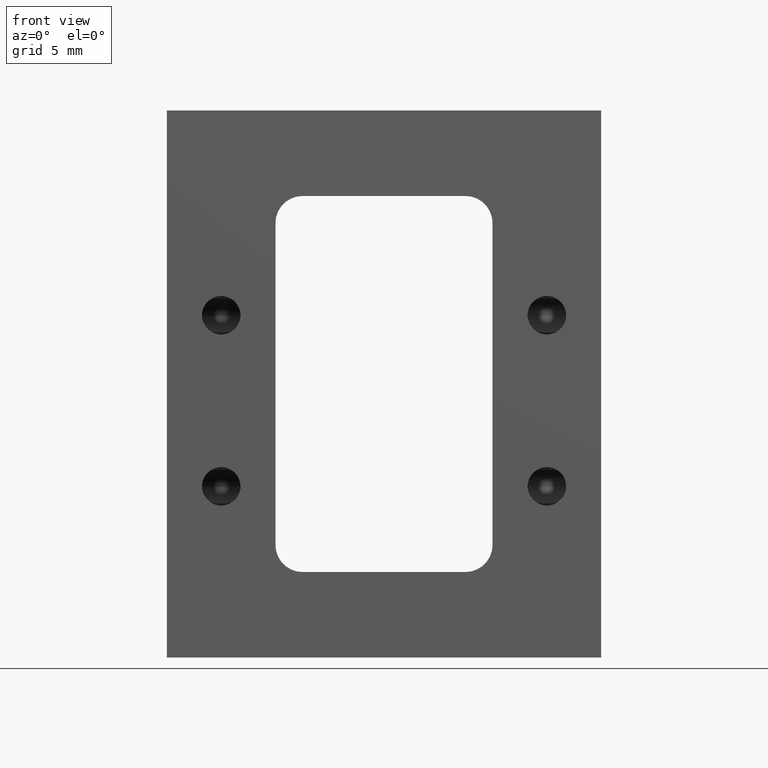
[diagram: clean part render]
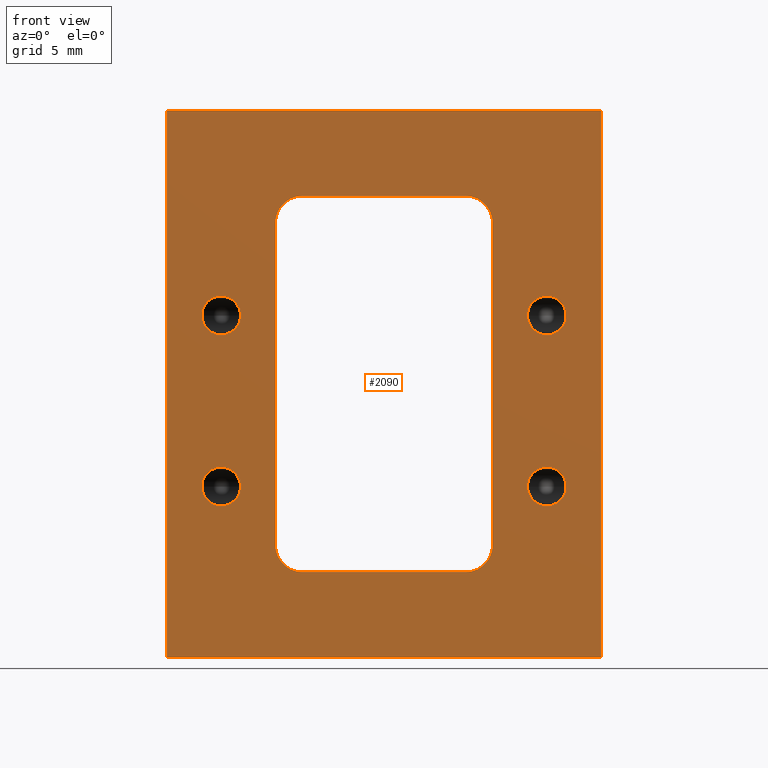
[diagram: same view with one face highlighted and labeled with its STEP entity id]
A machine part, front view. The second image highlights one B-rep face of the part: STEP entity #2090.
In plain terms, the highlighted planar face has unit normal (0, 1, -0).
Its self-contained STEP definition (entity closure, byte-faithful):
#8 = EDGE_LOOP ( 'NONE', ( #1288, #1301, #1281, #1264 ) ) ;
#17 = EDGE_LOOP ( 'NONE', ( #1297, #1298 ) ) ;
#23 = EDGE_LOOP ( 'NONE', ( #1271, #1272 ) ) ;
#52 = EDGE_LOOP ( 'NONE', ( #1279, #1246 ) ) ;
#67 = EDGE_LOOP ( 'NONE', ( #1247, #1280 ) ) ;
#73 = EDGE_LOOP ( 'NONE', ( #1304, #1274, #1283, #1295, #1284, #1262, #1303, #1269 ) ) ;
#91 = CIRCLE ( 'NONE', #1207, 0.04449999999999948400 ) ;
#286 = CARTESIAN_POINT ( 'NONE',  ( -0.3749999999999999400, -5.578266170116183400E-017, 0.7878425196850393800 ) ) ;
#287 = DIRECTION ( 'NONE',  ( -0.0000000000000000000, -1.000000000000000000, -0.0000000000000000000 ) ) ;
#288 = DIRECTION ( 'NONE',  ( 0.0000000000000000000, 0.0000000000000000000, -1.000000000000000000 ) ) ;
#567 = DIRECTION ( 'NONE',  ( -0.0000000000000000000, -0.0000000000000000000, 1.000000000000000000 ) ) ;
#584 = DIRECTION ( 'NONE',  ( -1.000000000000000000, -0.0000000000000000000, -0.0000000000000000000 ) ) ;
#585 = CARTESIAN_POINT ( 'NONE',  ( -0.3749999999999999400, -5.578266170116183400E-017, 0.3938425196850394200 ) ) ;
#586 = DIRECTION ( 'NONE',  ( -0.0000000000000000000, -1.000000000000000000, -0.0000000000000000000 ) ) ;
#587 = DIRECTION ( 'NONE',  ( 0.0000000000000000000, 0.0000000000000000000, -1.000000000000000000 ) ) ;
#588 = CARTESIAN_POINT ( 'NONE',  ( -0.2500000000000000000, -1.365923996832131600E-016, 0.1968503937007874100 ) ) ;
#589 = CARTESIAN_POINT ( 'NONE',  ( 0.3749999999999999400, -5.578266170116183400E-017, 0.7878425196850393800 ) ) ;
#590 = DIRECTION ( 'NONE',  ( -0.0000000000000000000, -1.000000000000000000, -0.0000000000000000000 ) ) ;
#591 = DIRECTION ( 'NONE',  ( 0.0000000000000000000, 0.0000000000000000000, -1.000000000000000000 ) ) ;
#592 = CARTESIAN_POINT ( 'NONE',  ( -0.2500000000000000000, -1.365923996832131600E-016, 1.062992125984252100 ) ) ;
#593 = CARTESIAN_POINT ( 'NONE',  ( 0.2500000000000002200, -1.365923996832131600E-016, 1.062992125984252100 ) ) ;
#594 = DIRECTION ( 'NONE',  ( 1.000000000000000000, -0.0000000000000000000, -0.0000000000000000000 ) ) ;
#595 = CARTESIAN_POINT ( 'NONE',  ( -0.1874999999999999700, -1.530808498934191600E-016, 0.2593503937007873800 ) ) ;
#596 = DIRECTION ( 'NONE',  ( 0.0000000000000000000, 1.000000000000000000, -0.0000000000000000000 ) ) ;
#597 = DIRECTION ( 'NONE',  ( 0.0000000000000000000, 0.0000000000000000000, 1.000000000000000000 ) ) ;
#598 = CARTESIAN_POINT ( 'NONE',  ( 0.2500000000000000000, -1.365923996832131600E-016, 0.1968503937007874100 ) ) ;
#599 = DIRECTION ( 'NONE',  ( -2.365532012695646200E-016, -0.0000000000000000000, -1.000000000000000000 ) ) ;
#600 = CARTESIAN_POINT ( 'NONE',  ( -0.1874999999999999700, -1.530808498934191600E-016, 1.000492125984252100 ) ) ;
#601 = DIRECTION ( 'NONE',  ( 0.0000000000000000000, 1.000000000000000000, -0.0000000000000000000 ) ) ;
#602 = DIRECTION ( 'NONE',  ( 0.0000000000000000000, 0.0000000000000000000, 1.000000000000000000 ) ) ;
#603 = CARTESIAN_POINT ( 'NONE',  ( 0.5000000000000000000, -1.530808498934191600E-016, 0.0000000000000000000 ) ) ;
#604 = DIRECTION ( 'NONE',  ( 1.000000000000000000, -0.0000000000000000000, -0.0000000000000000000 ) ) ;
#605 = CARTESIAN_POINT ( 'NONE',  ( 0.1875000000000001900, -1.530808498934191600E-016, 1.000492125984252100 ) ) ;
#606 = DIRECTION ( 'NONE',  ( 0.0000000000000000000, 1.000000000000000000, -0.0000000000000000000 ) ) ;
#607 = DIRECTION ( 'NONE',  ( 0.0000000000000000000, 0.0000000000000000000, 1.000000000000000000 ) ) ;
#608 = CARTESIAN_POINT ( 'NONE',  ( 0.5000000000000000000, -1.530808498934191600E-016, 1.259842519685039400 ) ) ;
#609 = CARTESIAN_POINT ( 'NONE',  ( 0.1874999999999999700, -1.530808498934191600E-016, 0.2593503937007873800 ) ) ;
#610 = DIRECTION ( 'NONE',  ( 0.0000000000000000000, 1.000000000000000000, -0.0000000000000000000 ) ) ;
#611 = DIRECTION ( 'NONE',  ( 0.0000000000000000000, 0.0000000000000000000, 1.000000000000000000 ) ) ;
#613 = DIRECTION ( 'NONE',  ( -0.0000000000000000000, -0.0000000000000000000, -1.000000000000000000 ) ) ;
#614 = CARTESIAN_POINT ( 'NONE',  ( 0.5000000000000000000, -1.530808498934191600E-016, 1.259842519685039400 ) ) ;
#615 = DIRECTION ( 'NONE',  ( 1.000000000000000000, -0.0000000000000000000, -0.0000000000000000000 ) ) ;
#616 = CARTESIAN_POINT ( 'NONE',  ( -0.5000000000000000000, -1.530808498934191600E-016, 1.259842519685039400 ) ) ;
#617 = DIRECTION ( 'NONE',  ( -0.0000000000000000000, -0.0000000000000000000, -1.000000000000000000 ) ) ;
#619 = CARTESIAN_POINT ( 'NONE',  ( 0.3749999999999999400, -5.578266170116183400E-017, 0.3938425196850394200 ) ) ;
#620 = DIRECTION ( 'NONE',  ( -0.0000000000000000000, -1.000000000000000000, -0.0000000000000000000 ) ) ;
#621 = DIRECTION ( 'NONE',  ( 0.0000000000000000000, 0.0000000000000000000, -1.000000000000000000 ) ) ;
#690 = CARTESIAN_POINT ( 'NONE',  ( 0.3749999999999999400, -5.578266170116183400E-017, 0.7878425196850393800 ) ) ;
#691 = DIRECTION ( 'NONE',  ( -0.0000000000000000000, -1.000000000000000000, -0.0000000000000000000 ) ) ;
#692 = DIRECTION ( 'NONE',  ( 0.0000000000000000000, 0.0000000000000000000, -1.000000000000000000 ) ) ;
#737 = CARTESIAN_POINT ( 'NONE',  ( 0.3749999999999999400, -5.578266170116183400E-017, 0.3938425196850394200 ) ) ;
#738 = DIRECTION ( 'NONE',  ( -0.0000000000000000000, -1.000000000000000000, -0.0000000000000000000 ) ) ;
#739 = DIRECTION ( 'NONE',  ( 0.0000000000000000000, 0.0000000000000000000, -1.000000000000000000 ) ) ;
#768 = CARTESIAN_POINT ( 'NONE',  ( -0.3749999999999999400, -5.578266170116183400E-017, 0.3938425196850394200 ) ) ;
#769 = DIRECTION ( 'NONE',  ( -0.0000000000000000000, -1.000000000000000000, -0.0000000000000000000 ) ) ;
#770 = DIRECTION ( 'NONE',  ( 0.0000000000000000000, 0.0000000000000000000, -1.000000000000000000 ) ) ;
#796 = CARTESIAN_POINT ( 'NONE',  ( -0.3749999999999999400, -5.578266170116183400E-017, 0.7878425196850393800 ) ) ;
#797 = DIRECTION ( 'NONE',  ( -0.0000000000000000000, -1.000000000000000000, -0.0000000000000000000 ) ) ;
#798 = DIRECTION ( 'NONE',  ( 0.0000000000000000000, 0.0000000000000000000, -1.000000000000000000 ) ) ;
#841 = CARTESIAN_POINT ( 'NONE',  ( -0.3749999999999999400, -5.578266170116183400E-017, 0.8323425196850389200 ) ) ;
#845 = CARTESIAN_POINT ( 'NONE',  ( 0.1875000000000001900, -1.365923996832131600E-016, 1.062992125984252100 ) ) ;
#849 = CARTESIAN_POINT ( 'NONE',  ( 0.3749999999999999400, -5.578266170116183400E-017, 0.3493425196850399300 ) ) ;
#852 = CARTESIAN_POINT ( 'NONE',  ( -0.3749999999999999400, -5.578266170116183400E-017, 0.4383425196850389000 ) ) ;
#861 = CARTESIAN_POINT ( 'NONE',  ( 0.3749999999999999400, -5.578266170116183400E-017, 0.4383425196850389000 ) ) ;
#867 = CARTESIAN_POINT ( 'NONE',  ( 0.3749999999999999400, -5.578266170116183400E-017, 0.8323425196850389200 ) ) ;
#868 = CARTESIAN_POINT ( 'NONE',  ( 0.3749999999999999400, -5.578266170116183400E-017, 0.7433425196850399500 ) ) ;
#872 = CARTESIAN_POINT ( 'NONE',  ( -0.3749999999999999400, -5.578266170116183400E-017, 0.7433425196850399500 ) ) ;
#876 = CARTESIAN_POINT ( 'NONE',  ( -0.3749999999999999400, -5.578266170116183400E-017, 0.3493425196850399300 ) ) ;
#911 = CARTESIAN_POINT ( 'NONE',  ( 0.1874999999999999700, -1.365923996832131600E-016, 0.1968503937007874100 ) ) ;
#915 = CARTESIAN_POINT ( 'NONE',  ( 0.2500000000000000000, -1.365923996832131600E-016, 0.2593503937007873800 ) ) ;
#918 = CARTESIAN_POINT ( 'NONE',  ( -0.5000000000000000000, -1.530808498934191600E-016, 0.0000000000000000000 ) ) ;
#919 = CARTESIAN_POINT ( 'NONE',  ( 0.5000000000000000000, -1.530808498934191600E-016, 0.0000000000000000000 ) ) ;
#925 = CARTESIAN_POINT ( 'NONE',  ( -0.1874999999999999700, -1.365923996832131600E-016, 1.062992125984252100 ) ) ;
#928 = CARTESIAN_POINT ( 'NONE',  ( 0.5000000000000000000, -1.530808498934191600E-016, 1.259842519685039400 ) ) ;
#930 = CARTESIAN_POINT ( 'NONE',  ( -0.5000000000000000000, -1.530808498934191600E-016, 1.259842519685039400 ) ) ;
#938 = CARTESIAN_POINT ( 'NONE',  ( -0.1874999999999999700, -1.365923996832131600E-016, 0.1968503937007874100 ) ) ;
#939 = CARTESIAN_POINT ( 'NONE',  ( 0.2500000000000002200, -1.365923996832131600E-016, 1.000492125984252100 ) ) ;
#941 = CARTESIAN_POINT ( 'NONE',  ( -0.2500000000000000000, -1.365923996832131600E-016, 0.2593503937007873800 ) ) ;
#943 = CARTESIAN_POINT ( 'NONE',  ( -0.2500000000000000000, -1.365923996832131600E-016, 1.000492125984252100 ) ) ;
#1000 = DIRECTION ( 'NONE',  ( 0.0000000000000000000, 1.000000000000000000, -0.0000000000000000000 ) ) ;
#1002 = PLANE ( 'NONE',  #1979 ) ;
#1003 = CARTESIAN_POINT ( 'NONE',  ( 0.5000000000000000000, -1.530808498934191600E-016, 1.259842519685039400 ) ) ;
#1004 = DIRECTION ( 'NONE',  ( 0.0000000000000000000, 0.0000000000000000000, 1.000000000000000000 ) ) ;
#1043 = EDGE_CURVE ( 'NONE', #1436, #1407, #91, .T. ) ;
#1137 = EDGE_CURVE ( 'NONE', #1435, #1413, #1701, .T. ) ;
#1138 = EDGE_CURVE ( 'NONE', #1427, #1426, #1710, .T. ) ;
#1139 = EDGE_CURVE ( 'NONE', #1489, #1513, #1712, .T. ) ;
#1140 = EDGE_CURVE ( 'NONE', #1513, #1516, #1713, .T. ) ;
#1141 = EDGE_CURVE ( 'NONE', #1516, #1518, #1716, .T. ) ;
#1142 = EDGE_CURVE ( 'NONE', #1518, #1498, #1717, .T. ) ;
#1143 = EDGE_CURVE ( 'NONE', #1498, #1344, #1719, .T. ) ;
#1144 = EDGE_CURVE ( 'NONE', #1344, #1514, #1720, .T. ) ;
#1145 = EDGE_CURVE ( 'NONE', #1514, #1480, #1722, .T. ) ;
#1146 = EDGE_CURVE ( 'NONE', #1480, #1489, #1723, .T. ) ;
#1147 = EDGE_CURVE ( 'NONE', #1496, #1497, #1725, .T. ) ;
#1148 = EDGE_CURVE ( 'NONE', #1502, #1497, #1714, .T. ) ;
#1149 = EDGE_CURVE ( 'NONE', #1505, #1502, #1728, .T. ) ;
#1150 = EDGE_CURVE ( 'NONE', #1505, #1496, #1730, .T. ) ;
#1151 = EDGE_CURVE ( 'NONE', #1420, #1419, #1732, .T. ) ;
#1166 = EDGE_CURVE ( 'NONE', #1426, #1427, #1748, .T. ) ;
#1173 = EDGE_CURVE ( 'NONE', #1419, #1420, #1755, .T. ) ;
#1180 = EDGE_CURVE ( 'NONE', #1413, #1435, #1762, .T. ) ;
#1185 = EDGE_CURVE ( 'NONE', #1407, #1436, #1765, .T. ) ;
#1207 = AXIS2_PLACEMENT_3D ( 'NONE', #286, #287, #288 ) ;
#1234 = AXIS2_PLACEMENT_3D ( 'NONE', #585, #586, #587 ) ;
#1246 = ORIENTED_EDGE ( 'NONE', *, *, #1180, .F. ) ;
#1247 = ORIENTED_EDGE ( 'NONE', *, *, #1043, .F. ) ;
#1262 = ORIENTED_EDGE ( 'NONE', *, *, #1144, .T. ) ;
#1264 = ORIENTED_EDGE ( 'NONE', *, *, #1150, .T. ) ;
#1269 = ORIENTED_EDGE ( 'NONE', *, *, #1146, .T. ) ;
#1271 = ORIENTED_EDGE ( 'NONE', *, *, #1151, .F. ) ;
#1272 = ORIENTED_EDGE ( 'NONE', *, *, #1173, .F. ) ;
#1274 = ORIENTED_EDGE ( 'NONE', *, *, #1140, .T. ) ;
#1279 = ORIENTED_EDGE ( 'NONE', *, *, #1137, .F. ) ;
#1280 = ORIENTED_EDGE ( 'NONE', *, *, #1185, .F. ) ;
#1281 = ORIENTED_EDGE ( 'NONE', *, *, #1149, .F. ) ;
#1283 = ORIENTED_EDGE ( 'NONE', *, *, #1141, .T. ) ;
#1284 = ORIENTED_EDGE ( 'NONE', *, *, #1143, .T. ) ;
#1288 = ORIENTED_EDGE ( 'NONE', *, *, #1147, .T. ) ;
#1295 = ORIENTED_EDGE ( 'NONE', *, *, #1142, .T. ) ;
#1297 = ORIENTED_EDGE ( 'NONE', *, *, #1138, .F. ) ;
#1298 = ORIENTED_EDGE ( 'NONE', *, *, #1166, .F. ) ;
#1301 = ORIENTED_EDGE ( 'NONE', *, *, #1148, .F. ) ;
#1303 = ORIENTED_EDGE ( 'NONE', *, *, #1145, .T. ) ;
#1304 = ORIENTED_EDGE ( 'NONE', *, *, #1139, .T. ) ;
#1344 = VERTEX_POINT ( 'NONE', #845 ) ;
#1407 = VERTEX_POINT ( 'NONE', #841 ) ;
#1413 = VERTEX_POINT ( 'NONE', #852 ) ;
#1419 = VERTEX_POINT ( 'NONE', #861 ) ;
#1420 = VERTEX_POINT ( 'NONE', #849 ) ;
#1426 = VERTEX_POINT ( 'NONE', #867 ) ;
#1427 = VERTEX_POINT ( 'NONE', #868 ) ;
#1435 = VERTEX_POINT ( 'NONE', #876 ) ;
#1436 = VERTEX_POINT ( 'NONE', #872 ) ;
#1480 = VERTEX_POINT ( 'NONE', #915 ) ;
#1489 = VERTEX_POINT ( 'NONE', #911 ) ;
#1496 = VERTEX_POINT ( 'NONE', #918 ) ;
#1497 = VERTEX_POINT ( 'NONE', #919 ) ;
#1498 = VERTEX_POINT ( 'NONE', #925 ) ;
#1502 = VERTEX_POINT ( 'NONE', #928 ) ;
#1505 = VERTEX_POINT ( 'NONE', #930 ) ;
#1513 = VERTEX_POINT ( 'NONE', #938 ) ;
#1514 = VERTEX_POINT ( 'NONE', #939 ) ;
#1516 = VERTEX_POINT ( 'NONE', #941 ) ;
#1518 = VERTEX_POINT ( 'NONE', #943 ) ;
#1701 = CIRCLE ( 'NONE', #1234, 0.04449999999999948400 ) ;
#1710 = CIRCLE ( 'NONE', #1935, 0.04449999999999948400 ) ;
#1712 = LINE ( 'NONE', #588, #1715 ) ;
#1713 = CIRCLE ( 'NONE', #1936, 0.06250000000000001400 ) ;
#1714 = LINE ( 'NONE', #608, #1729 ) ;
#1715 = VECTOR ( 'NONE', #584, 39.37007874015748100 ) ;
#1716 = LINE ( 'NONE', #592, #1718 ) ;
#1717 = CIRCLE ( 'NONE', #1937, 0.06249999999999995100 ) ;
#1718 = VECTOR ( 'NONE', #567, 39.37007874015748100 ) ;
#1719 = LINE ( 'NONE', #593, #1721 ) ;
#1720 = CIRCLE ( 'NONE', #1938, 0.06249999999999995100 ) ;
#1721 = VECTOR ( 'NONE', #594, 39.37007874015748100 ) ;
#1722 = LINE ( 'NONE', #598, #1724 ) ;
#1723 = CIRCLE ( 'NONE', #1939, 0.06250000000000001400 ) ;
#1724 = VECTOR ( 'NONE', #599, 39.37007874015748100 ) ;
#1725 = LINE ( 'NONE', #603, #1727 ) ;
#1727 = VECTOR ( 'NONE', #604, 39.37007874015748100 ) ;
#1728 = LINE ( 'NONE', #614, #1731 ) ;
#1729 = VECTOR ( 'NONE', #613, 39.37007874015748100 ) ;
#1730 = LINE ( 'NONE', #616, #1733 ) ;
#1731 = VECTOR ( 'NONE', #615, 39.37007874015748100 ) ;
#1732 = CIRCLE ( 'NONE', #1940, 0.04449999999999948400 ) ;
#1733 = VECTOR ( 'NONE', #617, 39.37007874015748100 ) ;
#1748 = CIRCLE ( 'NONE', #1947, 0.04449999999999948400 ) ;
#1755 = CIRCLE ( 'NONE', #1950, 0.04449999999999948400 ) ;
#1762 = CIRCLE ( 'NONE', #1953, 0.04449999999999948400 ) ;
#1765 = CIRCLE ( 'NONE', #1955, 0.04449999999999948400 ) ;
#1823 = FACE_BOUND ( 'NONE', #52, .T. ) ;
#1825 = FACE_BOUND ( 'NONE', #73, .T. ) ;
#1828 = FACE_BOUND ( 'NONE', #23, .T. ) ;
#1829 = FACE_OUTER_BOUND ( 'NONE', #8, .T. ) ;
#1830 = FACE_BOUND ( 'NONE', #17, .T. ) ;
#1831 = FACE_BOUND ( 'NONE', #67, .T. ) ;
#1935 = AXIS2_PLACEMENT_3D ( 'NONE', #589, #590, #591 ) ;
#1936 = AXIS2_PLACEMENT_3D ( 'NONE', #595, #596, #597 ) ;
#1937 = AXIS2_PLACEMENT_3D ( 'NONE', #600, #601, #602 ) ;
#1938 = AXIS2_PLACEMENT_3D ( 'NONE', #605, #606, #607 ) ;
#1939 = AXIS2_PLACEMENT_3D ( 'NONE', #609, #610, #611 ) ;
#1940 = AXIS2_PLACEMENT_3D ( 'NONE', #619, #620, #621 ) ;
#1947 = AXIS2_PLACEMENT_3D ( 'NONE', #690, #691, #692 ) ;
#1950 = AXIS2_PLACEMENT_3D ( 'NONE', #737, #738, #739 ) ;
#1953 = AXIS2_PLACEMENT_3D ( 'NONE', #768, #769, #770 ) ;
#1955 = AXIS2_PLACEMENT_3D ( 'NONE', #796, #797, #798 ) ;
#1979 = AXIS2_PLACEMENT_3D ( 'NONE', #1003, #1000, #1004 ) ;
#2090 = ADVANCED_FACE ( 'NONE', ( #1823, #1830, #1825, #1829, #1828, #1831 ), #1002, .F. ) ;